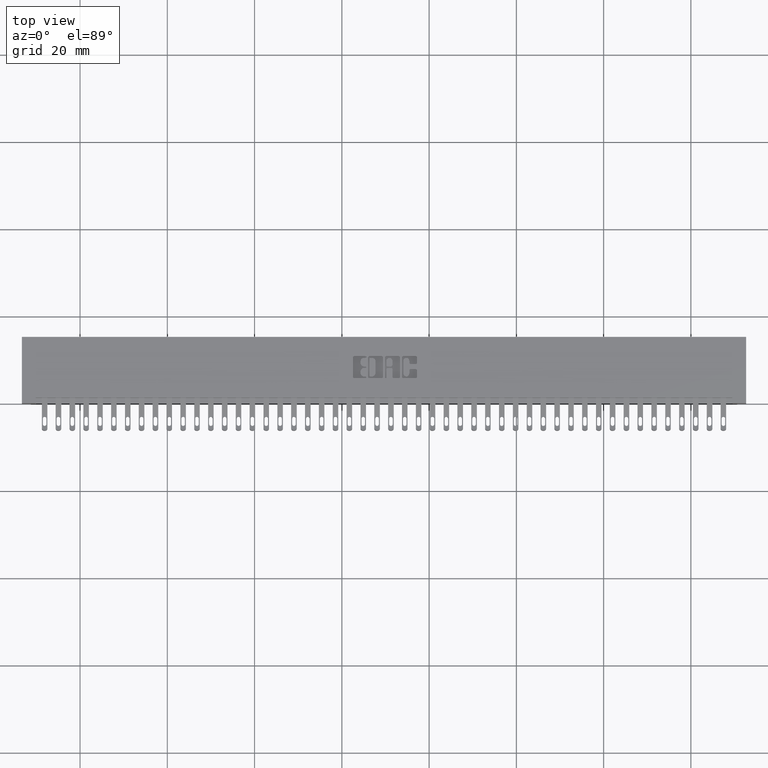
[diagram: clean part render]
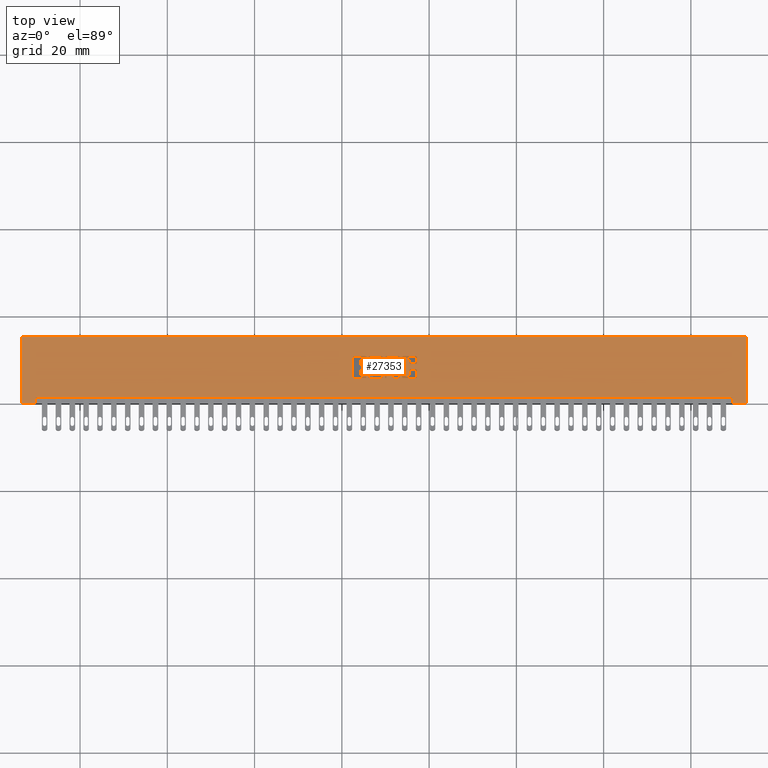
[diagram: same view with one face highlighted and labeled with its STEP entity id]
A machine part, top view. The second image highlights one B-rep face of the part: STEP entity #27353.
In plain terms, the highlighted planar face has unit normal (0, 0, -1).
Its self-contained STEP definition (entity closure, byte-faithful):
#26 = CIRCLE ( 'NONE', #12145, 0.009815670203787221800 ) ;
#52 = DIRECTION ( 'NONE',  ( -0.0000000000000000000, 0.0000000000000000000, 1.000000000000000000 ) ) ;
#101 = ORIENTED_EDGE ( 'NONE', *, *, #26470, .T. ) ;
#118 = CARTESIAN_POINT ( 'NONE',  ( 0.0000000000000000000, 0.4231567020380325200, 0.0000000000000000000 ) ) ;
#205 = EDGE_CURVE ( 'NONE', #23452, #25887, #14024, .T. ) ;
#297 = VERTEX_POINT ( 'NONE', #16478 ) ;
#403 = DIRECTION ( 'NONE',  ( -0.0000000000000000000, 0.0000000000000000000, 1.000000000000000000 ) ) ;
#438 = EDGE_LOOP ( 'NONE', ( #14179, #4692, #17958, #20853, #6975, #8122, #28696, #3375, #1060, #13353, #6444, #5958, #3976, #12626 ) ) ;
#467 = VECTOR ( 'NONE', #13319, 39.37007874015748100 ) ;
#550 = CARTESIAN_POINT ( 'NONE',  ( 3.349637060005126200, 0.3780046191005195800, 0.0000000000000000000 ) ) ;
#583 = EDGE_CURVE ( 'NONE', #6267, #7435, #21998, .T. ) ;
#666 = DIRECTION ( 'NONE',  ( -0.0000000000000000000, 0.0000000000000000000, 1.000000000000000000 ) ) ;
#727 = VECTOR ( 'NONE', #8220, 39.37007874015748100 ) ;
#822 = DIRECTION ( 'NONE',  ( 0.0000000000000000000, -1.000000000000000000, 0.0000000000000000000 ) ) ;
#892 = VERTEX_POINT ( 'NONE', #1037 ) ;
#958 = CARTESIAN_POINT ( 'NONE',  ( 0.0000000000000000000, 0.4231567020380508400, 0.0000000000000000000 ) ) ;
#1037 = CARTESIAN_POINT ( 'NONE',  ( 3.385955039759169800, 0.4133410318342099500, 0.0000000000000000000 ) ) ;
#1046 = DIRECTION ( 'NONE',  ( -0.0000000000000000000, 0.0000000000000000000, 1.000000000000000000 ) ) ;
#1060 = ORIENTED_EDGE ( 'NONE', *, *, #6426, .T. ) ;
#1110 = VERTEX_POINT ( 'NONE', #12669 ) ;
#1115 = LINE ( 'NONE', #12146, #2235 ) ;
#1132 = CARTESIAN_POINT ( 'NONE',  ( 3.318226915352910500, 0.0000000000000000000, 0.0000000000000000000 ) ) ;
#1165 = DIRECTION ( 'NONE',  ( 1.000000000000000000, 0.0000000000000000000, 0.0000000000000000000 ) ) ;
#1273 = VERTEX_POINT ( 'NONE', #29581 ) ;
#1340 = LINE ( 'NONE', #30125, #26187 ) ;
#1430 = DIRECTION ( 'NONE',  ( 1.000000000000000000, 0.0000000000000000000, 0.0000000000000000000 ) ) ;
#1489 = VERTEX_POINT ( 'NONE', #7837 ) ;
#1579 = VERTEX_POINT ( 'NONE', #31498 ) ;
#1632 = CIRCLE ( 'NONE', #27668, 0.009815670203787768200 ) ;
#1639 = EDGE_CURVE ( 'NONE', #24426, #6660, #25407, .T. ) ;
#1642 = CARTESIAN_POINT ( 'NONE',  ( -0.0000000000000000000, 0.3181290308573566100, 0.0000000000000000000 ) ) ;
#1914 = AXIS2_PLACEMENT_3D ( 'NONE', #13374, #11219, #16006 ) ;
#2028 = CIRCLE ( 'NONE', #22743, 0.02625691779518049900 ) ;
#2115 = LINE ( 'NONE', #9790, #20858 ) ;
#2235 = VECTOR ( 'NONE', #4762, 39.37007874015748100 ) ;
#2249 = ORIENTED_EDGE ( 'NONE', *, *, #205, .F. ) ;
#2266 = ORIENTED_EDGE ( 'NONE', *, *, #27671, .F. ) ;
#2294 = DIRECTION ( 'NONE',  ( -0.0000000000000000000, 0.0000000000000000000, 1.000000000000000000 ) ) ;
#2322 = CARTESIAN_POINT ( 'NONE',  ( -1.634053534411874800E-015, 0.2268432979619613200, 0.0000000000000000000 ) ) ;
#2329 = ORIENTED_EDGE ( 'NONE', *, *, #14578, .F. ) ;
#2354 = EDGE_CURVE ( 'NONE', #7601, #297, #2028, .T. ) ;
#2358 = EDGE_CURVE ( 'NONE', #30562, #24333, #28055, .T. ) ;
#2479 = DIRECTION ( 'NONE',  ( -1.000000000000000000, 0.0000000000000000000, 0.0000000000000000000 ) ) ;
#2501 = DIRECTION ( 'NONE',  ( -1.000000000000000000, -0.0000000000000000000, -0.0000000000000000000 ) ) ;
#2599 = CARTESIAN_POINT ( 'NONE',  ( 3.385955039759169800, 0.0000000000000000000, 0.0000000000000000000 ) ) ;
#2632 = VECTOR ( 'NONE', #19560, 39.37007874015748100 ) ;
#2637 = CARTESIAN_POINT ( 'NONE',  ( 3.349637060005110200, 0.2719953808994902100, 0.0000000000000000000 ) ) ;
#2682 = VERTEX_POINT ( 'NONE', #4276 ) ;
#2751 = CARTESIAN_POINT ( 'NONE',  ( 3.664229290037011500, 0.2268432979619844400, 0.0000000000000000000 ) ) ;
#2772 = EDGE_CURVE ( 'NONE', #19541, #26137, #5048, .T. ) ;
#2852 = CIRCLE ( 'NONE', #25074, 0.006870969142663458500 ) ;
#3026 = DIRECTION ( 'NONE',  ( 1.000000000000000000, 0.0000000000000000000, 0.0000000000000000000 ) ) ;
#3102 = ORIENTED_EDGE ( 'NONE', *, *, #20998, .T. ) ;
#3106 = AXIS2_PLACEMENT_3D ( 'NONE', #24247, #16744, #26580 ) ;
#3108 = DIRECTION ( 'NONE',  ( 1.000000000000000000, 0.0000000000000000000, 0.0000000000000000000 ) ) ;
#3162 = LINE ( 'NONE', #118, #10473 ) ;
#3189 = DIRECTION ( 'NONE',  ( 0.0000000000000000000, 1.000000000000000000, -0.0000000000000000000 ) ) ;
#3246 = AXIS2_PLACEMENT_3D ( 'NONE', #4347, #7406, #7311 ) ;
#3273 = DIRECTION ( 'NONE',  ( 0.0000000000000000000, 0.0000000000000000000, -1.000000000000000000 ) ) ;
#3313 = CARTESIAN_POINT ( 'NONE',  ( 3.349637060005110200, 0.2405852362473084000, 0.0000000000000000000 ) ) ;
#3331 = ORIENTED_EDGE ( 'NONE', *, *, #28615, .F. ) ;
#3375 = ORIENTED_EDGE ( 'NONE', *, *, #24972, .T. ) ;
#3378 = CIRCLE ( 'NONE', #3106, 0.006870969142648706400 ) ;
#3561 = ORIENTED_EDGE ( 'NONE', *, *, #7146, .F. ) ;
#3674 = ORIENTED_EDGE ( 'NONE', *, *, #2358, .F. ) ;
#3920 = ORIENTED_EDGE ( 'NONE', *, *, #27087, .F. ) ;
#3976 = ORIENTED_EDGE ( 'NONE', *, *, #10677, .T. ) ;
#4022 = CARTESIAN_POINT ( 'NONE',  ( 3.691222383097458900, 0.4133410318342099500, 0.0000000000000000000 ) ) ;
#4124 = CIRCLE ( 'NONE', #19549, 0.009815670203803066700 ) ;
#4237 = EDGE_CURVE ( 'NONE', #6622, #30430, #24884, .T. ) ;
#4243 = ORIENTED_EDGE ( 'NONE', *, *, #17238, .F. ) ;
#4245 = VERTEX_POINT ( 'NONE', #4731 ) ;
#4263 = DIRECTION ( 'NONE',  ( -0.0000000000000000000, 0.0000000000000000000, 1.000000000000000000 ) ) ;
#4276 = CARTESIAN_POINT ( 'NONE',  ( 6.797499999999999400, 0.0000000000000000000, 0.0000000000000000000 ) ) ;
#4347 = CARTESIAN_POINT ( 'NONE',  ( 3.349637060005084900, 0.2867188862052003600, 0.0000000000000000000 ) ) ;
#4355 = VERTEX_POINT ( 'NONE', #19508 ) ;
#4408 = VERTEX_POINT ( 'NONE', #7944 ) ;
#4427 = CARTESIAN_POINT ( 'NONE',  ( 3.395770709963010800, 0.4133410318342099500, 0.0000000000000000000 ) ) ;
#4480 = CARTESIAN_POINT ( 'NONE',  ( 3.701038053301300300, 0.4133410318342099500, 0.0000000000000000000 ) ) ;
#4498 = VECTOR ( 'NONE', #28266, 39.37007874015748100 ) ;
#4586 = CARTESIAN_POINT ( 'NONE',  ( -0.0000000000000000000, 0.2268432979619829900, 0.0000000000000000000 ) ) ;
#4656 = VECTOR ( 'NONE', #4863, 39.37007874015748100 ) ;
#4692 = ORIENTED_EDGE ( 'NONE', *, *, #13355, .F. ) ;
#4731 = CARTESIAN_POINT ( 'NONE',  ( 3.318226915352910500, 0.3780046191005195800, 0.0000000000000000000 ) ) ;
#4734 = ORIENTED_EDGE ( 'NONE', *, *, #9778, .F. ) ;
#4762 = DIRECTION ( 'NONE',  ( 0.0000000000000000000, -1.000000000000000000, 0.0000000000000000000 ) ) ;
#4863 = DIRECTION ( 'NONE',  ( 0.0000000000000000000, -1.000000000000000000, 0.0000000000000000000 ) ) ;
#4937 = VERTEX_POINT ( 'NONE', #8371 ) ;
#4979 = LINE ( 'NONE', #11149, #18779 ) ;
#4995 = CIRCLE ( 'NONE', #21901, 0.009815670203795418300 ) ;
#5030 = LINE ( 'NONE', #2599, #17279 ) ;
#5048 = LINE ( 'NONE', #18501, #23806 ) ;
#5146 = VECTOR ( 'NONE', #6525, 39.37007874015748100 ) ;
#5285 = CARTESIAN_POINT ( 'NONE',  ( 3.258842110619919000, 0.2268432979619847700, 0.0000000000000000000 ) ) ;
#5296 = VERTEX_POINT ( 'NONE', #23990 ) ;
#5367 = ORIENTED_EDGE ( 'NONE', *, *, #27421, .F. ) ;
#5467 = CARTESIAN_POINT ( 'NONE',  ( 3.731221239177992600, 0.3831578459575294400, 0.0000000000000000000 ) ) ;
#5473 = DIRECTION ( 'NONE',  ( -1.000000000000000000, -1.189163988687022500E-013, 0.0000000000000000000 ) ) ;
#5491 = CARTESIAN_POINT ( 'NONE',  ( 3.318226915352928200, 0.2719953808994902100, 0.0000000000000000000 ) ) ;
#5583 = CARTESIAN_POINT ( 'NONE',  ( 3.731221239177999300, 0.2668421540424528200, 0.0000000000000000000 ) ) ;
#5593 = EDGE_CURVE ( 'NONE', #16264, #4408, #2115, .T. ) ;
#5625 = AXIS2_PLACEMENT_3D ( 'NONE', #6637, #9291, #17341 ) ;
#5650 = DIRECTION ( 'NONE',  ( -0.0000000000000000000, 0.0000000000000000000, 1.000000000000000000 ) ) ;
#5660 = ORIENTED_EDGE ( 'NONE', *, *, #23657, .T. ) ;
#5676 = CARTESIAN_POINT ( 'NONE',  ( 3.363133606535310300, 0.3318709691426837100, 0.0000000000000000000 ) ) ;
#5887 = DIRECTION ( 'NONE',  ( -0.0000000000000000000, 0.0000000000000000000, 1.000000000000000000 ) ) ;
#5958 = ORIENTED_EDGE ( 'NONE', *, *, #6141, .F. ) ;
#6000 = DIRECTION ( 'NONE',  ( 1.000000000000000000, 0.0000000000000000000, 0.0000000000000000000 ) ) ;
#6089 = CIRCLE ( 'NONE', #7896, 0.009815670203822736800 ) ;
#6110 = CARTESIAN_POINT ( 'NONE',  ( 3.826678631909973000, 0.4133410318341946300, 0.0000000000000000000 ) ) ;
#6141 = EDGE_CURVE ( 'NONE', #30646, #8488, #7100, .T. ) ;
#6194 = CARTESIAN_POINT ( 'NONE',  ( 3.258842110619939000, 0.4231567020380325200, 0.0000000000000000000 ) ) ;
#6267 = VERTEX_POINT ( 'NONE', #10469 ) ;
#6290 = VECTOR ( 'NONE', #29657, 39.37007874015748100 ) ;
#6303 = VECTOR ( 'NONE', #1430, 39.37007874015748100 ) ;
#6426 = EDGE_CURVE ( 'NONE', #9933, #27233, #17420, .T. ) ;
#6438 = DIRECTION ( 'NONE',  ( 1.000000000000000000, 0.0000000000000000000, 0.0000000000000000000 ) ) ;
#6444 = ORIENTED_EDGE ( 'NONE', *, *, #27206, .T. ) ;
#6463 = LINE ( 'NONE', #4586, #14479 ) ;
#6525 = DIRECTION ( 'NONE',  ( -0.0000000000000000000, -1.000000000000000000, -0.0000000000000000000 ) ) ;
#6622 = VERTEX_POINT ( 'NONE', #23063 ) ;
#6637 = CARTESIAN_POINT ( 'NONE',  ( 3.545459680570988100, 0.2337142671046477700, 0.0000000000000000000 ) ) ;
#6660 = VERTEX_POINT ( 'NONE', #12556 ) ;
#6708 = DIRECTION ( 'NONE',  ( 1.000000000000000000, 0.0000000000000000000, 0.0000000000000000000 ) ) ;
#6763 = CARTESIAN_POINT ( 'NONE',  ( 3.701038053301266100, 0.2366589681657897700, 0.0000000000000000000 ) ) ;
#6778 = CARTESIAN_POINT ( 'NONE',  ( 3.370004575677998400, 0.2337142671046477700, 0.0000000000000000000 ) ) ;
#6786 = ORIENTED_EDGE ( 'NONE', *, *, #7506, .F. ) ;
#6826 = DIRECTION ( 'NONE',  ( 1.000000000000000000, 0.0000000000000000000, 0.0000000000000000000 ) ) ;
#6975 = ORIENTED_EDGE ( 'NONE', *, *, #2772, .T. ) ;
#7049 = EDGE_LOOP ( 'NONE', ( #21370, #20952, #30508, #14397, #4734, #23944, #24656, #23936 ) ) ;
#7100 = CIRCLE ( 'NONE', #5625, 0.006870969142657995000 ) ;
#7146 = EDGE_CURVE ( 'NONE', #17540, #12764, #20042, .T. ) ;
#7231 = DIRECTION ( 'NONE',  ( 1.000000000000000000, 0.0000000000000000000, 0.0000000000000000000 ) ) ;
#7311 = DIRECTION ( 'NONE',  ( 1.000000000000000000, 0.0000000000000000000, 0.0000000000000000000 ) ) ;
#7406 = DIRECTION ( 'NONE',  ( -0.0000000000000000000, 0.0000000000000000000, 1.000000000000000000 ) ) ;
#7435 = VERTEX_POINT ( 'NONE', #23935 ) ;
#7506 = EDGE_CURVE ( 'NONE', #13220, #7723, #3162, .T. ) ;
#7574 = EDGE_CURVE ( 'NONE', #27459, #27724, #15778, .T. ) ;
#7601 = VERTEX_POINT ( 'NONE', #22057 ) ;
#7633 = CARTESIAN_POINT ( 'NONE',  ( 3.757478156973179700, 0.2965345564089684700, 0.0000000000000000000 ) ) ;
#7673 = VERTEX_POINT ( 'NONE', #30442 ) ;
#7701 = DIRECTION ( 'NONE',  ( 0.0000000000000000000, 1.000000000000000000, -0.0000000000000000000 ) ) ;
#7723 = VERTEX_POINT ( 'NONE', #6194 ) ;
#7822 = DIRECTION ( 'NONE',  ( 1.000000000000000000, 0.0000000000000000000, 0.0000000000000000000 ) ) ;
#7837 = CARTESIAN_POINT ( 'NONE',  ( 3.521411288571670200, 0.4133410318342099500, 0.0000000000000000000 ) ) ;
#7839 = LINE ( 'NONE', #30078, #10133 ) ;
#7896 = AXIS2_PLACEMENT_3D ( 'NONE', #28429, #30679, #16016 ) ;
#7939 = VECTOR ( 'NONE', #19333, 39.37007874015748100 ) ;
#7944 = CARTESIAN_POINT ( 'NONE',  ( 3.757478156973166800, 0.3637718973050450000, 0.0000000000000000000 ) ) ;
#7972 = FACE_OUTER_BOUND ( 'NONE', #27654, .T. ) ;
#8020 = LINE ( 'NONE', #23464, #27936 ) ;
#8088 = DIRECTION ( 'NONE',  ( 1.000000000000000000, 0.0000000000000000000, 0.0000000000000000000 ) ) ;
#8103 = DIRECTION ( 'NONE',  ( 1.000000000000000000, 0.0000000000000000000, 0.0000000000000000000 ) ) ;
#8122 = ORIENTED_EDGE ( 'NONE', *, *, #16064, .F. ) ;
#8170 = DIRECTION ( 'NONE',  ( 1.000000000000000000, 0.0000000000000000000, 0.0000000000000000000 ) ) ;
#8220 = DIRECTION ( 'NONE',  ( -0.0000000000000000000, 1.000000000000000000, -0.0000000000000000000 ) ) ;
#8296 = CARTESIAN_POINT ( 'NONE',  ( 3.249026440416116200, 0.4133410318342099500, 0.0000000000000000000 ) ) ;
#8337 = CARTESIAN_POINT ( 'NONE',  ( 0.0000000000000000000, 0.3063502266127573500, 0.0000000000000000000 ) ) ;
#8371 = CARTESIAN_POINT ( 'NONE',  ( 3.548404381632128200, 0.4231567020380064300, 0.0000000000000000000 ) ) ;
#8388 = VERTEX_POINT ( 'NONE', #13401 ) ;
#8488 = VERTEX_POINT ( 'NONE', #18634 ) ;
#8492 = DIRECTION ( 'NONE',  ( 0.0000000000000000000, 1.000000000000000000, -0.0000000000000000000 ) ) ;
#8642 = EDGE_CURVE ( 'NONE', #4937, #19361, #26462, .T. ) ;
#8662 = DIRECTION ( 'NONE',  ( -1.000000000000000000, 0.0000000000000000000, 0.0000000000000000000 ) ) ;
#8676 = LINE ( 'NONE', #13337, #4498 ) ;
#8728 = CARTESIAN_POINT ( 'NONE',  ( 3.664229290037012400, 0.4133410318342102300, 0.0000000000000000000 ) ) ;
#8787 = VECTOR ( 'NONE', #21330, 39.37007874015748100 ) ;
#8792 = EDGE_CURVE ( 'NONE', #17940, #297, #22209, .T. ) ;
#8801 = VERTEX_POINT ( 'NONE', #26576 ) ;
#8852 = CARTESIAN_POINT ( 'NONE',  ( 0.3875000000000001800, 0.05000000000000000300, 0.0000000000000000000 ) ) ;
#8942 = EDGE_CURVE ( 'NONE', #21160, #6622, #26821, .T. ) ;
#8984 = VERTEX_POINT ( 'NONE', #16066 ) ;
#9018 = EDGE_CURVE ( 'NONE', #1273, #8984, #15338, .T. ) ;
#9139 = CIRCLE ( 'NONE', #21748, 0.006870969142663458500 ) ;
#9291 = DIRECTION ( 'NONE',  ( -0.0000000000000000000, 0.0000000000000000000, 1.000000000000000000 ) ) ;
#9447 = VERTEX_POINT ( 'NONE', #11810 ) ;
#9477 = DIRECTION ( 'NONE',  ( 1.000000000000000000, 0.0000000000000000000, 0.0000000000000000000 ) ) ;
#9584 = EDGE_CURVE ( 'NONE', #12512, #9447, #15659, .T. ) ;
#9593 = CIRCLE ( 'NONE', #26332, 0.009815670203806891800 ) ;
#9714 = VERTEX_POINT ( 'NONE', #6110 ) ;
#9763 = CARTESIAN_POINT ( 'NONE',  ( 3.538588711428331600, 0.0000000000000000000, 0.0000000000000000000 ) ) ;
#9778 = EDGE_CURVE ( 'NONE', #22216, #24426, #13007, .T. ) ;
#9790 = CARTESIAN_POINT ( 'NONE',  ( 3.757478156973166800, 0.0000000000000000000, 0.0000000000000000000 ) ) ;
#9827 = CARTESIAN_POINT ( 'NONE',  ( 3.249026440416116200, 0.2366589681657897700, 0.0000000000000000000 ) ) ;
#9862 = VECTOR ( 'NONE', #13369, 39.37007874015748100 ) ;
#9933 = VERTEX_POINT ( 'NONE', #20445 ) ;
#10036 = ORIENTED_EDGE ( 'NONE', *, *, #19772, .F. ) ;
#10080 = CARTESIAN_POINT ( 'NONE',  ( 3.349637060005084900, 0.3181290308573566100, 0.0000000000000000000 ) ) ;
#10133 = VECTOR ( 'NONE', #7701, 39.37007874015748100 ) ;
#10136 = VECTOR ( 'NONE', #24464, 39.37007874015748100 ) ;
#10171 = VERTEX_POINT ( 'NONE', #28530 ) ;
#10320 = CARTESIAN_POINT ( 'NONE',  ( 3.664229290037011500, 0.2366589681657806600, 0.0000000000000000000 ) ) ;
#10429 = CIRCLE ( 'NONE', #27064, 0.009815670203805798900 ) ;
#10469 = CARTESIAN_POINT ( 'NONE',  ( 3.511595618367897100, 0.4231567020380508400, 0.0000000000000000000 ) ) ;
#10473 = VECTOR ( 'NONE', #25385, 39.37007874015748100 ) ;
#10677 = EDGE_CURVE ( 'NONE', #30646, #14378, #30159, .T. ) ;
#10746 = CARTESIAN_POINT ( 'NONE',  ( 0.0000000000000000000, 0.0000000000000000000, 0.0000000000000000000 ) ) ;
#10802 = CARTESIAN_POINT ( 'NONE',  ( 3.816862961706167600, 0.3637718973050384500, 0.0000000000000000000 ) ) ;
#10828 = CARTESIAN_POINT ( 'NONE',  ( 3.363133606535352100, 0.4162857328953860600, 0.0000000000000000000 ) ) ;
#10832 = DIRECTION ( 'NONE',  ( 1.000000000000000000, 0.0000000000000000000, 0.0000000000000000000 ) ) ;
#10853 = EDGE_CURVE ( 'NONE', #1110, #25253, #15260, .T. ) ;
#10998 = EDGE_CURVE ( 'NONE', #4937, #14378, #13384, .T. ) ;
#11149 = CARTESIAN_POINT ( 'NONE',  ( 6.672500000000001200, 0.05000000000000000300, 0.0000000000000000000 ) ) ;
#11219 = DIRECTION ( 'NONE',  ( -0.0000000000000000000, 0.0000000000000000000, 1.000000000000000000 ) ) ;
#11336 = CARTESIAN_POINT ( 'NONE',  ( 3.349637060005084900, 0.3632811137948581700, 0.0000000000000000000 ) ) ;
#11351 = ORIENTED_EDGE ( 'NONE', *, *, #10853, .T. ) ;
#11470 = VERTEX_POINT ( 'NONE', #21939 ) ;
#11557 = AXIS2_PLACEMENT_3D ( 'NONE', #13320, #13005, #17815 ) ;
#11594 = CARTESIAN_POINT ( 'NONE',  ( 3.538588711428331600, 0.2337142671046477700, 0.0000000000000000000 ) ) ;
#11612 = VECTOR ( 'NONE', #2501, 39.37007874015748100 ) ;
#11627 = VECTOR ( 'NONE', #2479, 39.37007874015748100 ) ;
#11688 = DIRECTION ( 'NONE',  ( -0.0000000000000000000, 0.0000000000000000000, 1.000000000000000000 ) ) ;
#11748 = CARTESIAN_POINT ( 'NONE',  ( 3.826678631909941100, 0.2366589681657828000, 0.0000000000000000000 ) ) ;
#11810 = CARTESIAN_POINT ( 'NONE',  ( 3.604844485303985800, 0.3083133606535432600, 0.0000000000000000000 ) ) ;
#11943 = ORIENTED_EDGE ( 'NONE', *, *, #14072, .T. ) ;
#11975 = CIRCLE ( 'NONE', #19761, 0.009815670203806345400 ) ;
#12050 = VECTOR ( 'NONE', #8088, 39.37007874015748100 ) ;
#12145 = AXIS2_PLACEMENT_3D ( 'NONE', #31469, #4263, #6708 ) ;
#12146 = CARTESIAN_POINT ( 'NONE',  ( 3.552330649713647800, 0.0000000000000000000, 0.0000000000000000000 ) ) ;
#12179 = ORIENTED_EDGE ( 'NONE', *, *, #29346, .F. ) ;
#12195 = ORIENTED_EDGE ( 'NONE', *, *, #19162, .F. ) ;
#12213 = CARTESIAN_POINT ( 'NONE',  ( 3.363133606535352100, 0.4231567020380325200, 0.0000000000000000000 ) ) ;
#12218 = FACE_BOUND ( 'NONE', #25953, .T. ) ;
#12274 = CARTESIAN_POINT ( 'NONE',  ( -1.123269580619311400E-014, 0.3181290308572226600, 0.0000000000000000000 ) ) ;
#12375 = VERTEX_POINT ( 'NONE', #5285 ) ;
#12381 = DIRECTION ( 'NONE',  ( 0.0000000000000000000, -1.000000000000000000, 0.0000000000000000000 ) ) ;
#12506 = AXIS2_PLACEMENT_3D ( 'NONE', #11336, #24270, #24379 ) ;
#12512 = VERTEX_POINT ( 'NONE', #12877 ) ;
#12556 = CARTESIAN_POINT ( 'NONE',  ( 3.511595618367862500, 0.2268432979619829900, 0.0000000000000000000 ) ) ;
#12626 = ORIENTED_EDGE ( 'NONE', *, *, #10998, .F. ) ;
#12669 = CARTESIAN_POINT ( 'NONE',  ( 3.318226915352910500, 0.3632811137948581700, 0.0000000000000000000 ) ) ;
#12704 = CARTESIAN_POINT ( 'NONE',  ( 3.826678631909941100, 0.0000000000000000000, 0.0000000000000000000 ) ) ;
#12764 = VERTEX_POINT ( 'NONE', #23959 ) ;
#12805 = DIRECTION ( 'NONE',  ( -0.0000000000000000000, 0.0000000000000000000, 1.000000000000000000 ) ) ;
#12877 = CARTESIAN_POINT ( 'NONE',  ( 3.604844485303985800, 0.2366589681657876300, 0.0000000000000000000 ) ) ;
#12945 = CARTESIAN_POINT ( 'NONE',  ( 3.363133606535310300, 0.3250000000000201600, 0.0000000000000000000 ) ) ;
#12973 = ORIENTED_EDGE ( 'NONE', *, *, #23922, .F. ) ;
#13005 = DIRECTION ( 'NONE',  ( -0.0000000000000000000, 0.0000000000000000000, 1.000000000000000000 ) ) ;
#13007 = CIRCLE ( 'NONE', #16984, 0.009815670203806891800 ) ;
#13220 = VERTEX_POINT ( 'NONE', #12213 ) ;
#13280 = VERTEX_POINT ( 'NONE', #29692 ) ;
#13319 = DIRECTION ( 'NONE',  ( -1.000000000000000000, 0.0000000000000000000, 0.0000000000000000000 ) ) ;
#13320 = CARTESIAN_POINT ( 'NONE',  ( 3.767293827176978500, 0.3637718973050450000, 0.0000000000000000000 ) ) ;
#13337 = CARTESIAN_POINT ( 'NONE',  ( 3.318226915352928200, 0.0000000000000000000, 0.0000000000000000000 ) ) ;
#13351 = CARTESIAN_POINT ( 'NONE',  ( 3.538588711428331600, 0.4133410318342099500, 0.0000000000000000000 ) ) ;
#13353 = ORIENTED_EDGE ( 'NONE', *, *, #13644, .T. ) ;
#13355 = EDGE_CURVE ( 'NONE', #7673, #19361, #4995, .T. ) ;
#13369 = DIRECTION ( 'NONE',  ( 0.0000000000000000000, -1.000000000000000000, 0.0000000000000000000 ) ) ;
#13374 = CARTESIAN_POINT ( 'NONE',  ( 3.595028815100188800, 0.3083133606535526400, 0.0000000000000000000 ) ) ;
#13383 = VERTEX_POINT ( 'NONE', #8296 ) ;
#13384 = CIRCLE ( 'NONE', #14725, 0.009815670203796511200 ) ;
#13401 = CARTESIAN_POINT ( 'NONE',  ( 3.816862961706134700, 0.2268432979619829900, 0.0000000000000000000 ) ) ;
#13504 = CARTESIAN_POINT ( 'NONE',  ( 3.757478156973166800, 0.3831578454992597400, 0.0000000000000000000 ) ) ;
#13530 = CARTESIAN_POINT ( 'NONE',  ( 0.0000000000000000000, 0.4231567020380508400, 0.0000000000000000000 ) ) ;
#13558 = EDGE_CURVE ( 'NONE', #28277, #1489, #21783, .T. ) ;
#13585 = AXIS2_PLACEMENT_3D ( 'NONE', #2637, #403, #17522 ) ;
#13626 = EDGE_CURVE ( 'NONE', #4355, #17792, #8020, .T. ) ;
#13627 = CARTESIAN_POINT ( 'NONE',  ( 3.562146319917450600, 0.3083133606535453700, 0.0000000000000000000 ) ) ;
#13634 = CARTESIAN_POINT ( 'NONE',  ( 3.363133606535336100, 0.2337142671046477700, 0.0000000000000000000 ) ) ;
#13639 = CIRCLE ( 'NONE', #14286, 0.006870969142648706400 ) ;
#13644 = EDGE_CURVE ( 'NONE', #27233, #16597, #20656, .T. ) ;
#13707 = CARTESIAN_POINT ( 'NONE',  ( 3.614660155507788600, 0.2366589681657876300, 0.0000000000000000000 ) ) ;
#13731 = CARTESIAN_POINT ( 'NONE',  ( 3.548404381632128200, 0.4133410318342099500, 0.0000000000000000000 ) ) ;
#13814 = CARTESIAN_POINT ( 'NONE',  ( 3.363133606535336100, 0.2337142671046477700, 0.0000000000000000000 ) ) ;
#13840 = DIRECTION ( 'NONE',  ( -0.0000000000000000000, -1.000000000000000000, -0.0000000000000000000 ) ) ;
#13909 = CARTESIAN_POINT ( 'NONE',  ( 6.672500000000001200, 0.05000000000000000300, 0.0000000000000000000 ) ) ;
#13922 = VECTOR ( 'NONE', #22667, 39.37007874015748100 ) ;
#14012 = DIRECTION ( 'NONE',  ( -1.000000000000000000, 0.0000000000000000000, 0.0000000000000000000 ) ) ;
#14024 = LINE ( 'NONE', #24556, #24708 ) ;
#14072 = EDGE_CURVE ( 'NONE', #22914, #24333, #23306, .T. ) ;
#14164 = EDGE_CURVE ( 'NONE', #4355, #17540, #28686, .T. ) ;
#14179 = ORIENTED_EDGE ( 'NONE', *, *, #8642, .T. ) ;
#14201 = CIRCLE ( 'NONE', #24231, 0.009815670203795964800 ) ;
#14286 = AXIS2_PLACEMENT_3D ( 'NONE', #10828, #27921, #6000 ) ;
#14301 = AXIS2_PLACEMENT_3D ( 'NONE', #13634, #18330, #28038 ) ;
#14306 = LINE ( 'NONE', #24443, #11627 ) ;
#14324 = DIRECTION ( 'NONE',  ( -0.0000000000000000000, 0.0000000000000000000, 1.000000000000000000 ) ) ;
#14339 = EDGE_CURVE ( 'NONE', #19037, #16305, #30944, .T. ) ;
#14378 = VERTEX_POINT ( 'NONE', #13351 ) ;
#14397 = ORIENTED_EDGE ( 'NONE', *, *, #1639, .F. ) ;
#14420 = CARTESIAN_POINT ( 'NONE',  ( 3.552330649713647800, 0.3083133606535453700, 0.0000000000000000000 ) ) ;
#14479 = VECTOR ( 'NONE', #7231, 39.37007874015748100 ) ;
#14578 = EDGE_CURVE ( 'NONE', #8984, #8388, #6463, .T. ) ;
#14633 = DIRECTION ( 'NONE',  ( 1.000000000000000000, 7.203446383881635600E-015, 0.0000000000000000000 ) ) ;
#14725 = AXIS2_PLACEMENT_3D ( 'NONE', #13731, #16166, #24296 ) ;
#14782 = LINE ( 'NONE', #21134, #26266 ) ;
#14875 = CARTESIAN_POINT ( 'NONE',  ( 3.816862961706157400, 0.3063502266127573500, 0.0000000000000000000 ) ) ;
#14978 = VERTEX_POINT ( 'NONE', #18443 ) ;
#15147 = EDGE_CURVE ( 'NONE', #4408, #21160, #25154, .T. ) ;
#15152 = CARTESIAN_POINT ( 'NONE',  ( -0.0000000000000000000, 0.4231567020380064300, 0.0000000000000000000 ) ) ;
#15155 = ORIENTED_EDGE ( 'NONE', *, *, #21232, .F. ) ;
#15212 = ORIENTED_EDGE ( 'NONE', *, *, #15147, .F. ) ;
#15260 = CIRCLE ( 'NONE', #12506, 0.03141014465217440600 ) ;
#15338 = CIRCLE ( 'NONE', #31293, 0.009815670203806891800 ) ;
#15618 = DIRECTION ( 'NONE',  ( -0.0000000000000000000, 0.0000000000000000000, 1.000000000000000000 ) ) ;
#15659 = LINE ( 'NONE', #22528, #24141 ) ;
#15778 = LINE ( 'NONE', #29655, #11612 ) ;
#15834 = VERTEX_POINT ( 'NONE', #26820 ) ;
#15894 = DIRECTION ( 'NONE',  ( 1.000000000000000000, 0.0000000000000000000, 0.0000000000000000000 ) ) ;
#15896 = ORIENTED_EDGE ( 'NONE', *, *, #20092, .F. ) ;
#15925 = CIRCLE ( 'NONE', #1914, 0.009815670203797057700 ) ;
#16006 = DIRECTION ( 'NONE',  ( 1.000000000000000000, 0.0000000000000000000, 0.0000000000000000000 ) ) ;
#16016 = DIRECTION ( 'NONE',  ( 1.000000000000000000, 0.0000000000000000000, 0.0000000000000000000 ) ) ;
#16064 = EDGE_CURVE ( 'NONE', #12512, #26137, #4124, .T. ) ;
#16066 = CARTESIAN_POINT ( 'NONE',  ( 3.701038053301266100, 0.2268432979619829900, 0.0000000000000000000 ) ) ;
#16166 = DIRECTION ( 'NONE',  ( -0.0000000000000000000, 0.0000000000000000000, 1.000000000000000000 ) ) ;
#16171 = ORIENTED_EDGE ( 'NONE', *, *, #23903, .F. ) ;
#16264 = VERTEX_POINT ( 'NONE', #13504 ) ;
#16305 = VERTEX_POINT ( 'NONE', #4022 ) ;
#16307 = VECTOR ( 'NONE', #8662, 39.37007874015748100 ) ;
#16402 = DIRECTION ( 'NONE',  ( 1.000000000000000000, 0.0000000000000000000, 0.0000000000000000000 ) ) ;
#16429 = EDGE_CURVE ( 'NONE', #7673, #20535, #14782, .T. ) ;
#16478 = CARTESIAN_POINT ( 'NONE',  ( 3.757478156973179700, 0.2668421540424528200, 0.0000000000000000000 ) ) ;
#16482 = DIRECTION ( 'NONE',  ( 1.000000000000000000, 0.0000000000000000000, 0.0000000000000000000 ) ) ;
#16529 = LINE ( 'NONE', #1132, #20701 ) ;
#16566 = LINE ( 'NONE', #10746, #13922 ) ;
#16597 = VERTEX_POINT ( 'NONE', #14420 ) ;
#16607 = DIRECTION ( 'NONE',  ( -0.0000000000000000000, 0.0000000000000000000, 1.000000000000000000 ) ) ;
#16625 = DIRECTION ( 'NONE',  ( 1.000000000000000000, 0.0000000000000000000, 0.0000000000000000000 ) ) ;
#16632 = CARTESIAN_POINT ( 'NONE',  ( 6.672500000000001200, 0.0000000000000000000, 0.0000000000000000000 ) ) ;
#16723 = CARTESIAN_POINT ( 'NONE',  ( 3.511595618367862500, 0.2366589681657897700, 0.0000000000000000000 ) ) ;
#16744 = DIRECTION ( 'NONE',  ( -0.0000000000000000000, 0.0000000000000000000, 1.000000000000000000 ) ) ;
#16804 = DIRECTION ( 'NONE',  ( 1.000000000000000000, 0.0000000000000000000, 0.0000000000000000000 ) ) ;
#16815 = ORIENTED_EDGE ( 'NONE', *, *, #25195, .F. ) ;
#16984 = AXIS2_PLACEMENT_3D ( 'NONE', #20499, #5887, #6438 ) ;
#16999 = EDGE_CURVE ( 'NONE', #28455, #31048, #2852, .T. ) ;
#17172 = FACE_BOUND ( 'NONE', #7049, .T. ) ;
#17238 = EDGE_CURVE ( 'NONE', #30430, #9714, #7839, .T. ) ;
#17279 = VECTOR ( 'NONE', #12381, 39.37007874015748100 ) ;
#17341 = DIRECTION ( 'NONE',  ( 1.000000000000000000, 0.0000000000000000000, 0.0000000000000000000 ) ) ;
#17420 = LINE ( 'NONE', #12274, #10136 ) ;
#17485 = CARTESIAN_POINT ( 'NONE',  ( 0.3875000000000001800, 0.05000000000000000300, 0.0000000000000000000 ) ) ;
#17522 = DIRECTION ( 'NONE',  ( 1.000000000000000000, 0.0000000000000000000, 0.0000000000000000000 ) ) ;
#17540 = VERTEX_POINT ( 'NONE', #22178 ) ;
#17609 = EDGE_CURVE ( 'NONE', #28420, #15834, #23113, .T. ) ;
#17792 = VERTEX_POINT ( 'NONE', #20359 ) ;
#17815 = DIRECTION ( 'NONE',  ( 1.000000000000000000, 0.0000000000000000000, 0.0000000000000000000 ) ) ;
#17940 = VERTEX_POINT ( 'NONE', #7633 ) ;
#17958 = ORIENTED_EDGE ( 'NONE', *, *, #16429, .T. ) ;
#17988 = VECTOR ( 'NONE', #24138, 39.37007874015748100 ) ;
#18188 = LINE ( 'NONE', #8852, #5146 ) ;
#18305 = DIRECTION ( 'NONE',  ( 1.000000000000000000, 0.0000000000000000000, 0.0000000000000000000 ) ) ;
#18330 = DIRECTION ( 'NONE',  ( -0.0000000000000000000, 0.0000000000000000000, 1.000000000000000000 ) ) ;
#18342 = CARTESIAN_POINT ( 'NONE',  ( 3.258842110619923000, 0.2366589681657897700, 0.0000000000000000000 ) ) ;
#18443 = CARTESIAN_POINT ( 'NONE',  ( 3.767293827176967400, 0.3063502266127573500, 0.0000000000000000000 ) ) ;
#18453 = EDGE_CURVE ( 'NONE', #8388, #29530, #11975, .T. ) ;
#18501 = CARTESIAN_POINT ( 'NONE',  ( 0.0000000000000000000, 0.2268432979619844400, 0.0000000000000000000 ) ) ;
#18546 = LINE ( 'NONE', #12704, #6290 ) ;
#18612 = CARTESIAN_POINT ( 'NONE',  ( 3.349637060005084900, 0.3318709691426837100, 0.0000000000000000000 ) ) ;
#18634 = CARTESIAN_POINT ( 'NONE',  ( 3.552330649713647800, 0.2337142671046477700, 0.0000000000000000000 ) ) ;
#18662 = DIRECTION ( 'NONE',  ( 1.000000000000000000, 0.0000000000000000000, 0.0000000000000000000 ) ) ;
#18688 = ORIENTED_EDGE ( 'NONE', *, *, #20727, .T. ) ;
#18696 = ORIENTED_EDGE ( 'NONE', *, *, #20459, .T. ) ;
#18779 = VECTOR ( 'NONE', #13840, 39.37007874015748100 ) ;
#19001 = ORIENTED_EDGE ( 'NONE', *, *, #8792, .F. ) ;
#19037 = VERTEX_POINT ( 'NONE', #27091 ) ;
#19098 = EDGE_CURVE ( 'NONE', #16264, #1579, #28912, .T. ) ;
#19162 = EDGE_CURVE ( 'NONE', #11470, #13220, #13639, .T. ) ;
#19184 = EDGE_CURVE ( 'NONE', #23503, #14978, #25476, .T. ) ;
#19240 = DIRECTION ( 'NONE',  ( -0.0000000000000000000, 0.0000000000000000000, 1.000000000000000000 ) ) ;
#19279 = DIRECTION ( 'NONE',  ( 1.000000000000000000, 0.0000000000000000000, 0.0000000000000000000 ) ) ;
#19333 = DIRECTION ( 'NONE',  ( 0.0000000000000000000, 1.000000000000000000, -0.0000000000000000000 ) ) ;
#19361 = VERTEX_POINT ( 'NONE', #31218 ) ;
#19464 = FACE_BOUND ( 'NONE', #21059, .T. ) ;
#19508 = CARTESIAN_POINT ( 'NONE',  ( 0.2625000000000000100, 0.0000000000000000000, 0.0000000000000000000 ) ) ;
#19541 = VERTEX_POINT ( 'NONE', #2751 ) ;
#19549 = AXIS2_PLACEMENT_3D ( 'NONE', #13707, #14324, #29684 ) ;
#19560 = DIRECTION ( 'NONE',  ( -0.0000000000000000000, 1.000000000000000000, -0.0000000000000000000 ) ) ;
#19597 = CARTESIAN_POINT ( 'NONE',  ( 3.562146319917450600, 0.3181290308573484500, 0.0000000000000000000 ) ) ;
#19744 = CIRCLE ( 'NONE', #14301, 0.006870969142662365600 ) ;
#19761 = AXIS2_PLACEMENT_3D ( 'NONE', #29367, #52, #27127 ) ;
#19772 = EDGE_CURVE ( 'NONE', #13383, #21461, #1340, .T. ) ;
#19859 = ORIENTED_EDGE ( 'NONE', *, *, #22636, .F. ) ;
#19893 = CARTESIAN_POINT ( 'NONE',  ( 3.614660155507786400, 0.2268432979619844400, 0.0000000000000000000 ) ) ;
#20042 = LINE ( 'NONE', #22809, #29241 ) ;
#20092 = EDGE_CURVE ( 'NONE', #29530, #8801, #18546, .T. ) ;
#20359 = CARTESIAN_POINT ( 'NONE',  ( 0.3875000000000001800, 0.0000000000000000000, 0.0000000000000000000 ) ) ;
#20445 = CARTESIAN_POINT ( 'NONE',  ( 3.595028815100188800, 0.3181290308573496200, 0.0000000000000000000 ) ) ;
#20459 = EDGE_CURVE ( 'NONE', #28420, #13280, #22281, .T. ) ;
#20499 = CARTESIAN_POINT ( 'NONE',  ( 3.395770709962976600, 0.2366589681657897700, 0.0000000000000000000 ) ) ;
#20513 = EDGE_CURVE ( 'NONE', #31048, #25253, #14306, .T. ) ;
#20535 = VERTEX_POINT ( 'NONE', #31248 ) ;
#20656 = CIRCLE ( 'NONE', #27688, 0.009815670203803066700 ) ;
#20701 = VECTOR ( 'NONE', #8492, 39.37007874015748100 ) ;
#20713 = PLANE ( 'NONE',  #24921 ) ;
#20727 = EDGE_CURVE ( 'NONE', #23452, #4245, #29945, .T. ) ;
#20848 = DIRECTION ( 'NONE',  ( -0.0000000000000000000, 0.0000000000000000000, 1.000000000000000000 ) ) ;
#20853 = ORIENTED_EDGE ( 'NONE', *, *, #22876, .F. ) ;
#20858 = VECTOR ( 'NONE', #26819, 39.37007874015748100 ) ;
#20904 = DIRECTION ( 'NONE',  ( 1.000000000000000000, 0.0000000000000000000, 0.0000000000000000000 ) ) ;
#20931 = DIRECTION ( 'NONE',  ( 0.0000000000000000000, -1.000000000000000000, 0.0000000000000000000 ) ) ;
#20952 = ORIENTED_EDGE ( 'NONE', *, *, #13558, .F. ) ;
#20998 = EDGE_CURVE ( 'NONE', #28233, #2682, #16566, .T. ) ;
#21023 = ORIENTED_EDGE ( 'NONE', *, *, #17609, .F. ) ;
#21059 = EDGE_LOOP ( 'NONE', ( #30756, #26005, #15212, #31604, #24390, #2266, #30894, #19001, #21310, #24566, #19859, #15896, #29474, #2329, #29999, #5367, #30840, #26861, #23230, #4243 ) ) ;
#21132 = EDGE_CURVE ( 'NONE', #5296, #19037, #31067, .T. ) ;
#21134 = CARTESIAN_POINT ( 'NONE',  ( 3.674044960240807200, 0.0000000000000000000, 0.0000000000000000000 ) ) ;
#21160 = VERTEX_POINT ( 'NONE', #23453 ) ;
#21232 = EDGE_CURVE ( 'NONE', #21461, #12375, #10429, .T. ) ;
#21310 = ORIENTED_EDGE ( 'NONE', *, *, #21868, .F. ) ;
#21330 = DIRECTION ( 'NONE',  ( 0.0000000000000000000, 1.000000000000000000, -0.0000000000000000000 ) ) ;
#21370 = ORIENTED_EDGE ( 'NONE', *, *, #24559, .F. ) ;
#21403 = LINE ( 'NONE', #22869, #727 ) ;
#21455 = DIRECTION ( 'NONE',  ( -0.0000000000000000000, 0.0000000000000000000, 1.000000000000000000 ) ) ;
#21461 = VERTEX_POINT ( 'NONE', #9827 ) ;
#21526 = DIRECTION ( 'NONE',  ( -0.0000000000000000000, 0.0000000000000000000, 1.000000000000000000 ) ) ;
#21648 = VECTOR ( 'NONE', #22980, 39.37007874015748100 ) ;
#21735 = CARTESIAN_POINT ( 'NONE',  ( 3.363133606535310300, 0.3250000000000201600, 0.0000000000000000000 ) ) ;
#21748 = AXIS2_PLACEMENT_3D ( 'NONE', #21735, #2294, #26787 ) ;
#21783 = LINE ( 'NONE', #28295, #8787 ) ;
#21868 = EDGE_CURVE ( 'NONE', #14978, #17940, #1632, .T. ) ;
#21901 = AXIS2_PLACEMENT_3D ( 'NONE', #8728, #1046, #1165 ) ;
#21939 = CARTESIAN_POINT ( 'NONE',  ( 3.370004575678000600, 0.4162857328953860600, 0.0000000000000000000 ) ) ;
#21998 = LINE ( 'NONE', #958, #21648 ) ;
#22057 = CARTESIAN_POINT ( 'NONE',  ( 3.704964321382819400, 0.2668421540424528200, 0.0000000000000000000 ) ) ;
#22173 = EDGE_CURVE ( 'NONE', #12375, #10171, #26481, .T. ) ;
#22178 = CARTESIAN_POINT ( 'NONE',  ( 0.2625000000000000100, 0.5999999999999999800, 0.0000000000000000000 ) ) ;
#22180 = VECTOR ( 'NONE', #18662, 39.37007874015748100 ) ;
#22209 = LINE ( 'NONE', #29243, #4656 ) ;
#22216 = VERTEX_POINT ( 'NONE', #31592 ) ;
#22226 = VECTOR ( 'NONE', #14633, 39.37007874015748100 ) ;
#22279 = VECTOR ( 'NONE', #5473, 39.37007874015748100 ) ;
#22281 = CIRCLE ( 'NONE', #3246, 0.03141014465215637200 ) ;
#22302 = CARTESIAN_POINT ( 'NONE',  ( 3.826678631909973000, 0.3637718973050384500, 0.0000000000000000000 ) ) ;
#22528 = CARTESIAN_POINT ( 'NONE',  ( 3.604844485303985800, 0.0000000000000000000, 0.0000000000000000000 ) ) ;
#22544 = CARTESIAN_POINT ( 'NONE',  ( 3.370004575677974000, 0.3250000000000201600, 0.0000000000000000000 ) ) ;
#22565 = AXIS2_PLACEMENT_3D ( 'NONE', #13814, #21455, #6826 ) ;
#22566 = VECTOR ( 'NONE', #20904, 39.37007874015748100 ) ;
#22636 = EDGE_CURVE ( 'NONE', #8801, #23503, #26, .T. ) ;
#22662 = EDGE_CURVE ( 'NONE', #892, #22216, #5030, .T. ) ;
#22667 = DIRECTION ( 'NONE',  ( 1.000000000000000000, 0.0000000000000000000, 0.0000000000000000000 ) ) ;
#22722 = ORIENTED_EDGE ( 'NONE', *, *, #16999, .F. ) ;
#22743 = AXIS2_PLACEMENT_3D ( 'NONE', #5583, #666, #10832 ) ;
#22788 = CIRCLE ( 'NONE', #22565, 0.006870969142662365600 ) ;
#22809 = CARTESIAN_POINT ( 'NONE',  ( 0.0000000000000000000, 0.5999999999999999800, 0.0000000000000000000 ) ) ;
#22869 = CARTESIAN_POINT ( 'NONE',  ( 6.797500000000002100, 0.0000000000000000000, 0.0000000000000000000 ) ) ;
#22876 = EDGE_CURVE ( 'NONE', #19541, #20535, #14201, .T. ) ;
#22914 = VERTEX_POINT ( 'NONE', #5491 ) ;
#22980 = DIRECTION ( 'NONE',  ( -1.000000000000000000, 0.0000000000000000000, 0.0000000000000000000 ) ) ;
#23061 = CARTESIAN_POINT ( 'NONE',  ( 3.691222383097458900, 0.0000000000000000000, 0.0000000000000000000 ) ) ;
#23063 = CARTESIAN_POINT ( 'NONE',  ( 3.816862961706167600, 0.3539562271012333100, 0.0000000000000000000 ) ) ;
#23113 = LINE ( 'NONE', #1642, #6303 ) ;
#23230 = ORIENTED_EDGE ( 'NONE', *, *, #31393, .F. ) ;
#23306 = CIRCLE ( 'NONE', #13585, 0.03141014465218205200 ) ;
#23452 = VERTEX_POINT ( 'NONE', #23991 ) ;
#23453 = CARTESIAN_POINT ( 'NONE',  ( 3.767293827176978500, 0.3539562271012334200, 0.0000000000000000000 ) ) ;
#23464 = CARTESIAN_POINT ( 'NONE',  ( 0.0000000000000000000, 0.0000000000000000000, 0.0000000000000000000 ) ) ;
#23503 = VERTEX_POINT ( 'NONE', #14875 ) ;
#23574 = CARTESIAN_POINT ( 'NONE',  ( 3.521411288571670200, 0.2366589681657897700, 0.0000000000000000000 ) ) ;
#23657 = EDGE_CURVE ( 'NONE', #2682, #12764, #21403, .T. ) ;
#23677 = AXIS2_PLACEMENT_3D ( 'NONE', #5467, #15618, #7822 ) ;
#23806 = VECTOR ( 'NONE', #14012, 39.37007874015748100 ) ;
#23848 = AXIS2_PLACEMENT_3D ( 'NONE', #28984, #16607, #16804 ) ;
#23903 = EDGE_CURVE ( 'NONE', #15834, #28455, #9139, .T. ) ;
#23922 = EDGE_CURVE ( 'NONE', #25887, #11470, #3378, .T. ) ;
#23935 = CARTESIAN_POINT ( 'NONE',  ( 3.395770709963010800, 0.4231567020380508400, 0.0000000000000000000 ) ) ;
#23936 = ORIENTED_EDGE ( 'NONE', *, *, #583, .F. ) ;
#23944 = ORIENTED_EDGE ( 'NONE', *, *, #22662, .F. ) ;
#23959 = CARTESIAN_POINT ( 'NONE',  ( 6.797500000000002100, 0.5999999999999999800, 0.0000000000000000000 ) ) ;
#23990 = CARTESIAN_POINT ( 'NONE',  ( 3.816862961706169300, 0.4231567020380508400, 0.0000000000000000000 ) ) ;
#23991 = CARTESIAN_POINT ( 'NONE',  ( 3.349637060005126200, 0.4094147637527355600, 0.0000000000000000000 ) ) ;
#24138 = DIRECTION ( 'NONE',  ( 0.0000000000000000000, 1.000000000000000000, -0.0000000000000000000 ) ) ;
#24141 = VECTOR ( 'NONE', #3189, 39.37007874015748100 ) ;
#24200 = DIRECTION ( 'NONE',  ( 1.000000000000000000, 0.0000000000000000000, 0.0000000000000000000 ) ) ;
#24231 = AXIS2_PLACEMENT_3D ( 'NONE', #10320, #12805, #3026 ) ;
#24247 = CARTESIAN_POINT ( 'NONE',  ( 3.363133606535352100, 0.4162857328953860600, 0.0000000000000000000 ) ) ;
#24270 = DIRECTION ( 'NONE',  ( -0.0000000000000000000, 0.0000000000000000000, 1.000000000000000000 ) ) ;
#24296 = DIRECTION ( 'NONE',  ( 1.000000000000000000, 0.0000000000000000000, 0.0000000000000000000 ) ) ;
#24333 = VERTEX_POINT ( 'NONE', #3313 ) ;
#24379 = DIRECTION ( 'NONE',  ( 1.000000000000000000, 0.0000000000000000000, 0.0000000000000000000 ) ) ;
#24390 = ORIENTED_EDGE ( 'NONE', *, *, #19098, .T. ) ;
#24418 = LINE ( 'NONE', #29155, #7939 ) ;
#24426 = VERTEX_POINT ( 'NONE', #26013 ) ;
#24443 = CARTESIAN_POINT ( 'NONE',  ( 0.0000000000000000000, 0.3318709691426837100, 0.0000000000000000000 ) ) ;
#24464 = DIRECTION ( 'NONE',  ( -1.000000000000000000, -3.530861605407645300E-014, 0.0000000000000000000 ) ) ;
#24466 = ORIENTED_EDGE ( 'NONE', *, *, #25803, .F. ) ;
#24556 = CARTESIAN_POINT ( 'NONE',  ( -0.0000000000000000000, 0.4094147637527355600, 0.0000000000000000000 ) ) ;
#24559 = EDGE_CURVE ( 'NONE', #1489, #6267, #30886, .T. ) ;
#24566 = ORIENTED_EDGE ( 'NONE', *, *, #19184, .F. ) ;
#24656 = ORIENTED_EDGE ( 'NONE', *, *, #30559, .F. ) ;
#24708 = VECTOR ( 'NONE', #24200, 39.37007874015748100 ) ;
#24884 = CIRCLE ( 'NONE', #31012, 0.009815670203805252500 ) ;
#24921 = AXIS2_PLACEMENT_3D ( 'NONE', #30241, #3273, #27987 ) ;
#24972 = EDGE_CURVE ( 'NONE', #9447, #9933, #15925, .T. ) ;
#24993 = CARTESIAN_POINT ( 'NONE',  ( -0.0000000000000000000, 0.2268432979619829900, 0.0000000000000000000 ) ) ;
#25074 = AXIS2_PLACEMENT_3D ( 'NONE', #12945, #5650, #8103 ) ;
#25154 = CIRCLE ( 'NONE', #11557, 0.009815670203811809700 ) ;
#25195 = EDGE_CURVE ( 'NONE', #10171, #28205, #22788, .T. ) ;
#25253 = VERTEX_POINT ( 'NONE', #18612 ) ;
#25385 = DIRECTION ( 'NONE',  ( -1.000000000000000000, 0.0000000000000000000, 0.0000000000000000000 ) ) ;
#25407 = LINE ( 'NONE', #24993, #12050 ) ;
#25476 = LINE ( 'NONE', #8337, #16307 ) ;
#25702 = DIRECTION ( 'NONE',  ( 1.000000000000000000, 0.0000000000000000000, 0.0000000000000000000 ) ) ;
#25803 = EDGE_CURVE ( 'NONE', #1110, #4245, #16529, .T. ) ;
#25859 = EDGE_CURVE ( 'NONE', #6660, #28277, #9593, .T. ) ;
#25887 = VERTEX_POINT ( 'NONE', #28490 ) ;
#25953 = EDGE_LOOP ( 'NONE', ( #18688, #24466, #11351, #31577, #22722, #16171, #21023, #18696, #27239, #11943, #3674, #3331, #16815, #27061, #15155, #10036, #3920, #6786, #12195, #12973, #2249 ) ) ;
#25987 = CARTESIAN_POINT ( 'NONE',  ( 3.767293827176967400, 0.2965345564089693600, 0.0000000000000000000 ) ) ;
#26005 = ORIENTED_EDGE ( 'NONE', *, *, #8942, .F. ) ;
#26013 = CARTESIAN_POINT ( 'NONE',  ( 3.395770709962976600, 0.2268432979619829900, 0.0000000000000000000 ) ) ;
#26066 = AXIS2_PLACEMENT_3D ( 'NONE', #4480, #19240, #9477 ) ;
#26137 = VERTEX_POINT ( 'NONE', #19893 ) ;
#26187 = VECTOR ( 'NONE', #822, 39.37007874015748100 ) ;
#26266 = VECTOR ( 'NONE', #20931, 39.37007874015748100 ) ;
#26332 = AXIS2_PLACEMENT_3D ( 'NONE', #16723, #21526, #26359 ) ;
#26359 = DIRECTION ( 'NONE',  ( 1.000000000000000000, 0.0000000000000000000, 0.0000000000000000000 ) ) ;
#26415 = DIRECTION ( 'NONE',  ( -0.0000000000000000000, 0.0000000000000000000, 1.000000000000000000 ) ) ;
#26450 = DIRECTION ( 'NONE',  ( -0.0000000000000000000, 0.0000000000000000000, 1.000000000000000000 ) ) ;
#26462 = LINE ( 'NONE', #15152, #22566 ) ;
#26470 = EDGE_CURVE ( 'NONE', #27459, #28233, #4979, .T. ) ;
#26481 = LINE ( 'NONE', #2322, #22226 ) ;
#26576 = CARTESIAN_POINT ( 'NONE',  ( 3.826678631909941100, 0.2965345564089702500, 0.0000000000000000000 ) ) ;
#26580 = DIRECTION ( 'NONE',  ( 1.000000000000000000, 0.0000000000000000000, 0.0000000000000000000 ) ) ;
#26627 = CARTESIAN_POINT ( 'NONE',  ( 0.2625000000000000100, 0.0000000000000000000, 0.0000000000000000000 ) ) ;
#26787 = DIRECTION ( 'NONE',  ( 1.000000000000000000, 0.0000000000000000000, 0.0000000000000000000 ) ) ;
#26819 = DIRECTION ( 'NONE',  ( 0.0000000000000000000, -1.000000000000000000, 0.0000000000000000000 ) ) ;
#26820 = CARTESIAN_POINT ( 'NONE',  ( 3.363133606415389400, 0.3181290308573566100, 0.0000000000000000000 ) ) ;
#26821 = LINE ( 'NONE', #30619, #22180 ) ;
#26861 = ORIENTED_EDGE ( 'NONE', *, *, #21132, .F. ) ;
#27061 = ORIENTED_EDGE ( 'NONE', *, *, #22173, .F. ) ;
#27064 = AXIS2_PLACEMENT_3D ( 'NONE', #18342, #30392, #25702 ) ;
#27087 = EDGE_CURVE ( 'NONE', #7723, #13383, #6089, .T. ) ;
#27091 = CARTESIAN_POINT ( 'NONE',  ( 3.701038053301300300, 0.4231567020380508400, 0.0000000000000000000 ) ) ;
#27101 = LINE ( 'NONE', #23061, #9862 ) ;
#27127 = DIRECTION ( 'NONE',  ( 1.000000000000000000, 0.0000000000000000000, 0.0000000000000000000 ) ) ;
#27206 = EDGE_CURVE ( 'NONE', #16597, #8488, #1115, .T. ) ;
#27233 = VERTEX_POINT ( 'NONE', #19597 ) ;
#27239 = ORIENTED_EDGE ( 'NONE', *, *, #28078, .F. ) ;
#27353 = ADVANCED_FACE ( 'NONE', ( #19464, #12218, #7972, #17172, #30926 ), #20713, .F. ) ;
#27421 = EDGE_CURVE ( 'NONE', #16305, #1273, #27101, .T. ) ;
#27459 = VERTEX_POINT ( 'NONE', #13909 ) ;
#27503 = DIRECTION ( 'NONE',  ( -0.0000000000000000000, 0.0000000000000000000, 1.000000000000000000 ) ) ;
#27654 = EDGE_LOOP ( 'NONE', ( #3102, #5660, #3561, #28348, #31143, #12179, #31323, #101 ) ) ;
#27668 = AXIS2_PLACEMENT_3D ( 'NONE', #25987, #28325, #18305 ) ;
#27671 = EDGE_CURVE ( 'NONE', #7601, #1579, #24418, .T. ) ;
#27688 = AXIS2_PLACEMENT_3D ( 'NONE', #13627, #20848, #28672 ) ;
#27711 = CARTESIAN_POINT ( 'NONE',  ( -2.860952991545852200E-014, 0.2405852362469100800, 0.0000000000000000000 ) ) ;
#27724 = VERTEX_POINT ( 'NONE', #17485 ) ;
#27894 = DIRECTION ( 'NONE',  ( -0.0000000000000000000, 0.0000000000000000000, 1.000000000000000000 ) ) ;
#27921 = DIRECTION ( 'NONE',  ( -0.0000000000000000000, 0.0000000000000000000, 1.000000000000000000 ) ) ;
#27936 = VECTOR ( 'NONE', #16625, 39.37007874015748100 ) ;
#27987 = DIRECTION ( 'NONE',  ( -1.000000000000000000, 0.0000000000000000000, -0.0000000000000000000 ) ) ;
#28038 = DIRECTION ( 'NONE',  ( 1.000000000000000000, 0.0000000000000000000, 0.0000000000000000000 ) ) ;
#28055 = LINE ( 'NONE', #27711, #22279 ) ;
#28078 = EDGE_CURVE ( 'NONE', #22914, #13280, #8676, .T. ) ;
#28205 = VERTEX_POINT ( 'NONE', #6778 ) ;
#28219 = AXIS2_PLACEMENT_3D ( 'NONE', #31108, #26415, #16482 ) ;
#28233 = VERTEX_POINT ( 'NONE', #16632 ) ;
#28266 = DIRECTION ( 'NONE',  ( 0.0000000000000000000, 1.000000000000000000, -0.0000000000000000000 ) ) ;
#28277 = VERTEX_POINT ( 'NONE', #23574 ) ;
#28295 = CARTESIAN_POINT ( 'NONE',  ( 3.521411288571670200, 0.0000000000000000000, 0.0000000000000000000 ) ) ;
#28325 = DIRECTION ( 'NONE',  ( -0.0000000000000000000, 0.0000000000000000000, 1.000000000000000000 ) ) ;
#28348 = ORIENTED_EDGE ( 'NONE', *, *, #14164, .F. ) ;
#28420 = VERTEX_POINT ( 'NONE', #10080 ) ;
#28429 = CARTESIAN_POINT ( 'NONE',  ( 3.258842110619939000, 0.4133410318342099500, 0.0000000000000000000 ) ) ;
#28455 = VERTEX_POINT ( 'NONE', #22544 ) ;
#28490 = CARTESIAN_POINT ( 'NONE',  ( 3.363133606535352100, 0.4094147637527355600, 0.0000000000000000000 ) ) ;
#28530 = CARTESIAN_POINT ( 'NONE',  ( 3.363133606415415100, 0.2268432979619855200, 0.0000000000000000000 ) ) ;
#28615 = EDGE_CURVE ( 'NONE', #28205, #30562, #19744, .T. ) ;
#28672 = DIRECTION ( 'NONE',  ( 1.000000000000000000, 0.0000000000000000000, 0.0000000000000000000 ) ) ;
#28686 = LINE ( 'NONE', #26627, #2632 ) ;
#28696 = ORIENTED_EDGE ( 'NONE', *, *, #9584, .T. ) ;
#28764 = CIRCLE ( 'NONE', #28219, 0.009815670203840221000 ) ;
#28912 = CIRCLE ( 'NONE', #23677, 0.02625691779517394200 ) ;
#28984 = CARTESIAN_POINT ( 'NONE',  ( 3.511595618367828700, 0.4133410318342097800, 0.0000000000000000000 ) ) ;
#29155 = CARTESIAN_POINT ( 'NONE',  ( 3.704964321382819400, 0.0000000000000000000, 0.0000000000000000000 ) ) ;
#29189 = CIRCLE ( 'NONE', #29857, 0.009815670203840767500 ) ;
#29241 = VECTOR ( 'NONE', #8170, 39.37007874015748100 ) ;
#29243 = CARTESIAN_POINT ( 'NONE',  ( 3.757478156973179700, 0.0000000000000000000, 0.0000000000000000000 ) ) ;
#29346 = EDGE_CURVE ( 'NONE', #27724, #17792, #18188, .T. ) ;
#29367 = CARTESIAN_POINT ( 'NONE',  ( 3.816862961706134700, 0.2366589681657897700, 0.0000000000000000000 ) ) ;
#29474 = ORIENTED_EDGE ( 'NONE', *, *, #18453, .F. ) ;
#29530 = VERTEX_POINT ( 'NONE', #11748 ) ;
#29581 = CARTESIAN_POINT ( 'NONE',  ( 3.691222383097458900, 0.2366589681657897700, 0.0000000000000000000 ) ) ;
#29655 = CARTESIAN_POINT ( 'NONE',  ( 0.3875000000000001800, 0.05000000000000000300, 0.0000000000000000000 ) ) ;
#29657 = DIRECTION ( 'NONE',  ( 0.0000000000000000000, 1.000000000000000000, -0.0000000000000000000 ) ) ;
#29684 = DIRECTION ( 'NONE',  ( 1.000000000000000000, 0.0000000000000000000, 0.0000000000000000000 ) ) ;
#29692 = CARTESIAN_POINT ( 'NONE',  ( 3.318226915352928200, 0.2867188862052003600, 0.0000000000000000000 ) ) ;
#29857 = AXIS2_PLACEMENT_3D ( 'NONE', #4427, #11688, #16402 ) ;
#29945 = CIRCLE ( 'NONE', #31135, 0.03141014465221592800 ) ;
#29999 = ORIENTED_EDGE ( 'NONE', *, *, #9018, .F. ) ;
#30078 = CARTESIAN_POINT ( 'NONE',  ( 3.826678631909973000, 0.0000000000000000000, 0.0000000000000000000 ) ) ;
#30125 = CARTESIAN_POINT ( 'NONE',  ( 3.249026440416116200, 0.0000000000000000000, 0.0000000000000000000 ) ) ;
#30159 = LINE ( 'NONE', #9763, #17988 ) ;
#30241 = CARTESIAN_POINT ( 'NONE',  ( 0.0000000000000000000, 0.5999999999999999800, 0.0000000000000000000 ) ) ;
#30392 = DIRECTION ( 'NONE',  ( -0.0000000000000000000, 0.0000000000000000000, 1.000000000000000000 ) ) ;
#30430 = VERTEX_POINT ( 'NONE', #22302 ) ;
#30442 = CARTESIAN_POINT ( 'NONE',  ( 3.674044960240807200, 0.4133410318342007900, 0.0000000000000000000 ) ) ;
#30508 = ORIENTED_EDGE ( 'NONE', *, *, #25859, .F. ) ;
#30559 = EDGE_CURVE ( 'NONE', #7435, #892, #29189, .T. ) ;
#30562 = VERTEX_POINT ( 'NONE', #30927 ) ;
#30619 = CARTESIAN_POINT ( 'NONE',  ( -0.0000000000000000000, 0.3539562271012334200, 0.0000000000000000000 ) ) ;
#30646 = VERTEX_POINT ( 'NONE', #11594 ) ;
#30679 = DIRECTION ( 'NONE',  ( -0.0000000000000000000, 0.0000000000000000000, 1.000000000000000000 ) ) ;
#30756 = ORIENTED_EDGE ( 'NONE', *, *, #4237, .F. ) ;
#30840 = ORIENTED_EDGE ( 'NONE', *, *, #14339, .F. ) ;
#30886 = CIRCLE ( 'NONE', #23848, 0.009815670203841313900 ) ;
#30894 = ORIENTED_EDGE ( 'NONE', *, *, #2354, .T. ) ;
#30926 = FACE_BOUND ( 'NONE', #438, .T. ) ;
#30927 = CARTESIAN_POINT ( 'NONE',  ( 3.363133606415415100, 0.2405852362473100100, 0.0000000000000000000 ) ) ;
#30944 = CIRCLE ( 'NONE', #26066, 0.009815670203841313900 ) ;
#31012 = AXIS2_PLACEMENT_3D ( 'NONE', #10802, #27894, #15894 ) ;
#31048 = VERTEX_POINT ( 'NONE', #5676 ) ;
#31067 = LINE ( 'NONE', #13530, #467 ) ;
#31108 = CARTESIAN_POINT ( 'NONE',  ( 3.816862961706132500, 0.4133410318342107300, 0.0000000000000000000 ) ) ;
#31135 = AXIS2_PLACEMENT_3D ( 'NONE', #550, #27503, #3108 ) ;
#31143 = ORIENTED_EDGE ( 'NONE', *, *, #13626, .T. ) ;
#31218 = CARTESIAN_POINT ( 'NONE',  ( 3.664229290037014600, 0.4231567020380064300, 0.0000000000000000000 ) ) ;
#31248 = CARTESIAN_POINT ( 'NONE',  ( 3.674044960240807200, 0.2366589681657806600, 0.0000000000000000000 ) ) ;
#31293 = AXIS2_PLACEMENT_3D ( 'NONE', #6763, #26450, #19279 ) ;
#31323 = ORIENTED_EDGE ( 'NONE', *, *, #7574, .F. ) ;
#31393 = EDGE_CURVE ( 'NONE', #9714, #5296, #28764, .T. ) ;
#31469 = CARTESIAN_POINT ( 'NONE',  ( 3.816862961706153800, 0.2965345564089702500, 0.0000000000000000000 ) ) ;
#31498 = CARTESIAN_POINT ( 'NONE',  ( 3.704964321382819400, 0.3831578459575294400, 0.0000000000000000000 ) ) ;
#31577 = ORIENTED_EDGE ( 'NONE', *, *, #20513, .F. ) ;
#31592 = CARTESIAN_POINT ( 'NONE',  ( 3.385955039759169800, 0.2366589681657897700, 0.0000000000000000000 ) ) ;
#31604 = ORIENTED_EDGE ( 'NONE', *, *, #5593, .F. ) ;